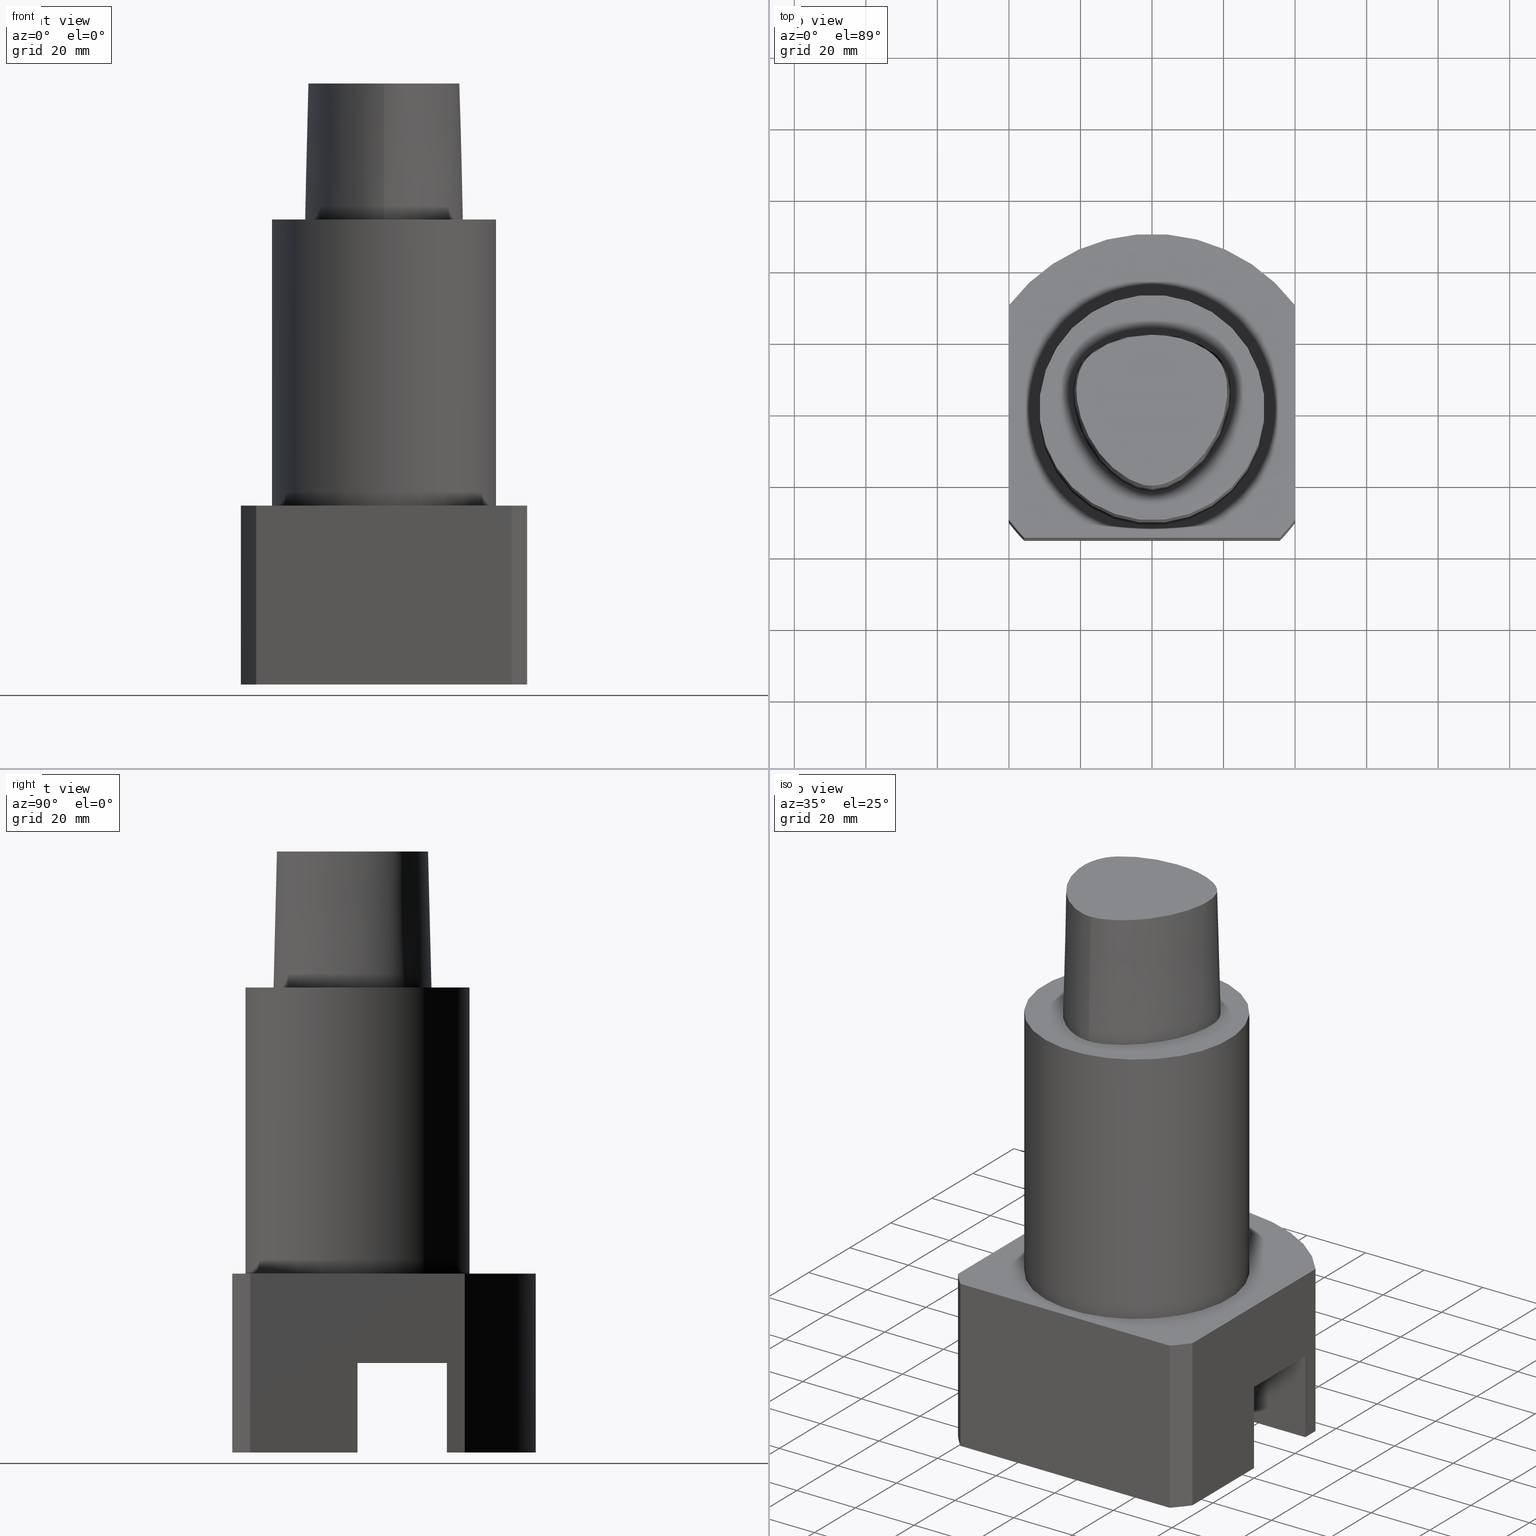
[diagram: canonical four-view strip — front | top / right | iso, engineering-drawing reading convention]
A machine part, canonical four-view strip (front | top / right | iso — engineering-drawing reading convention). The complete STEP part file that produces these views, byte-faithful:
ISO-10303-21;
HEADER;
FILE_DESCRIPTION((''),'1');
FILE_NAME('T:/21_DXF\X2\30C730FC30BF4F5C621057FA6E96\X0\/C6-90-BH25N-40130.stp','2017-05-03T04:36:31',(''),(''),'Spatial Interop R21 SP3','Kubotek KeyCreator 2011 V10.0.2 (22737)',' ');
FILE_SCHEMA(('automotive_design'));
ENDSEC;
DATA;
#1=MECHANICAL_DESIGN_GEOMETRIC_PRESENTATION_REPRESENTATION(' ',(#10,#11,#12,#13,#14,#15,#16,#17,#18,#19,#20,#21,#22,#23,#24,#25,#26,#27,#28,#29,#30,#31,#32,#33,#34,#35,#36,#37,#38,#39,#40,#41,#42,#43,#44,#45,#46,#47,#48,#49,#50,#51,#52,#53,#54,#55,#56,#57,#58,#59,#60,#61,#62,#63,#64,#65,#66,#67,#68),#6);
#2=PRODUCT_DEFINITION_CONTEXT('',#69,'design');
#3=APPLICATION_PROTOCOL_DEFINITION('INTERNATIONAL STANDARD','automotive_design',1994,#69);
#4=PRODUCT_CATEGORY_RELATIONSHIP('NONE','NONE',#70,#71);
#5=SHAPE_DEFINITION_REPRESENTATION(#72,#73);
#6= (GEOMETRIC_REPRESENTATION_CONTEXT(3)GLOBAL_UNCERTAINTY_ASSIGNED_CONTEXT((#76))GLOBAL_UNIT_ASSIGNED_CONTEXT((#78,#79,#80))REPRESENTATION_CONTEXT('NONE','WORKSPACE'));
#10=STYLED_ITEM('',(#82),#83);
#11=STYLED_ITEM('',(#84),#85);
#12=STYLED_ITEM('',(#86),#87);
#13=STYLED_ITEM('',(#88),#89);
#14=STYLED_ITEM('',(#90,#91),#92);
#15=STYLED_ITEM('',(#93,#94),#95);
#16=STYLED_ITEM('',(#96,#97),#98);
#17=STYLED_ITEM('',(#99),#100);
#18=STYLED_ITEM('',(#101,#102),#103);
#19=STYLED_ITEM('',(#104),#105);
#20=STYLED_ITEM('',(#106,#107),#108);
#21=STYLED_ITEM('',(#109,#110),#111);
#22=STYLED_ITEM('',(#112),#113);
#23=STYLED_ITEM('',(#114),#115);
#24=STYLED_ITEM('',(#116),#117);
#25=STYLED_ITEM('',(#118),#119);
#26=STYLED_ITEM('',(#120),#121);
#27=STYLED_ITEM('',(#122),#123);
#28=STYLED_ITEM('',(#124),#125);
#29=STYLED_ITEM('',(#126),#127);
#30=STYLED_ITEM('',(#128,#129),#130);
#31=STYLED_ITEM('',(#131,#132),#133);
#32=STYLED_ITEM('',(#134),#135);
#33=STYLED_ITEM('',(#136,#137),#138);
#34=STYLED_ITEM('',(#139,#140),#141);
#35=STYLED_ITEM('',(#142),#143);
#36=STYLED_ITEM('',(#144),#145);
#37=STYLED_ITEM('',(#146,#147),#148);
#38=STYLED_ITEM('',(#149),#150);
#39=STYLED_ITEM('',(#151),#152);
#40=STYLED_ITEM('',(#153),#154);
#41=STYLED_ITEM('',(#155),#156);
#42=STYLED_ITEM('',(#157,#158),#159);
#43=STYLED_ITEM('',(#160),#161);
#44=STYLED_ITEM('',(#162),#163);
#45=STYLED_ITEM('',(#164,#165),#166);
#46=STYLED_ITEM('',(#167),#168);
#47=STYLED_ITEM('',(#169),#170);
#48=STYLED_ITEM('',(#171),#172);
#49=STYLED_ITEM('',(#173),#174);
#50=STYLED_ITEM('',(#175,#176),#177);
#51=STYLED_ITEM('',(#178),#179);
#52=STYLED_ITEM('',(#180,#181),#182);
#53=STYLED_ITEM('',(#183),#184);
#54=STYLED_ITEM('',(#185),#186);
#55=STYLED_ITEM('',(#187,#188),#189);
#56=STYLED_ITEM('',(#190),#191);
#57=STYLED_ITEM('',(#192),#193);
#58=STYLED_ITEM('',(#194),#195);
#59=STYLED_ITEM('',(#196),#197);
#60=STYLED_ITEM('',(#198),#199);
#61=STYLED_ITEM('',(#200,#201),#202);
#62=STYLED_ITEM('',(#203),#204);
#63=STYLED_ITEM('',(#205),#206);
#64=STYLED_ITEM('',(#207,#208),#209);
#65=STYLED_ITEM('',(#210),#211);
#66=STYLED_ITEM('',(#212,#213),#214);
#67=STYLED_ITEM('',(#215),#216);
#68=STYLED_ITEM('',(#217),#218);
#69=APPLICATION_CONTEXT(' ');
#70=PRODUCT_CATEGORY('part','NONE');
#71=PRODUCT_RELATED_PRODUCT_CATEGORY('detail',' ',(#219));
#72=PRODUCT_DEFINITION_SHAPE('NONE','NONE',#220);
#73=ADVANCED_BREP_SHAPE_REPRESENTATION('240[2]',(#182,#221),#6);
#76=UNCERTAINTY_MEASURE_WITH_UNIT(LENGTH_MEASURE(1.0E-006),#78,'','');
#78= (CONVERSION_BASED_UNIT('MILLIMETRE',#224)LENGTH_UNIT()NAMED_UNIT(#227));
#79= (NAMED_UNIT(#229)PLANE_ANGLE_UNIT()SI_UNIT($,.RADIAN.));
#80= (NAMED_UNIT(#229)SOLID_ANGLE_UNIT()SI_UNIT($,.STERADIAN.));
#82=PRESENTATION_STYLE_ASSIGNMENT((#235));
#83=EDGE_CURVE('240[2]',#236,#237,#238,.T.);
#84=PRESENTATION_STYLE_ASSIGNMENT((#239));
#85=EDGE_CURVE('240[2]',#240,#241,#242,.T.);
#86=PRESENTATION_STYLE_ASSIGNMENT((#243));
#87=EDGE_CURVE('240[2]',#244,#245,#246,.T.);
#88=PRESENTATION_STYLE_ASSIGNMENT((#247));
#89=EDGE_CURVE('240[2]',#248,#249,#250,.T.);
#90=PRESENTATION_STYLE_ASSIGNMENT((#251));
#91=PRESENTATION_STYLE_ASSIGNMENT((#252));
#92=ADVANCED_FACE('240[2]',(#253),#254,.T.);
#93=PRESENTATION_STYLE_ASSIGNMENT((#255));
#94=PRESENTATION_STYLE_ASSIGNMENT((#256));
#95=ADVANCED_FACE('240[2]',(#257),#258,.T.);
#96=PRESENTATION_STYLE_ASSIGNMENT((#259));
#97=PRESENTATION_STYLE_ASSIGNMENT((#260));
#98=ADVANCED_FACE('240[2]',(#261),#262,.T.);
#99=PRESENTATION_STYLE_ASSIGNMENT((#263));
#100=EDGE_CURVE('240[2]',#264,#241,#265,.T.);
#101=PRESENTATION_STYLE_ASSIGNMENT((#266));
#102=PRESENTATION_STYLE_ASSIGNMENT((#267));
#103=ADVANCED_FACE('240[2]',(#268),#269,.T.);
#104=PRESENTATION_STYLE_ASSIGNMENT((#270));
#105=EDGE_CURVE('240[2]',#271,#236,#272,.T.);
#106=PRESENTATION_STYLE_ASSIGNMENT((#273));
#107=PRESENTATION_STYLE_ASSIGNMENT((#274));
#108=ADVANCED_FACE('240[2]',(#275),#276,.T.);
#109=PRESENTATION_STYLE_ASSIGNMENT((#277));
#110=PRESENTATION_STYLE_ASSIGNMENT((#278));
#111=ADVANCED_FACE('240[2]',(#279),#280,.T.);
#112=PRESENTATION_STYLE_ASSIGNMENT((#281));
#113=EDGE_CURVE('240[2]',#282,#283,#284,.T.);
#114=PRESENTATION_STYLE_ASSIGNMENT((#285));
#115=EDGE_CURVE('240[2]',#286,#287,#288,.T.);
#116=PRESENTATION_STYLE_ASSIGNMENT((#289));
#117=EDGE_CURVE('240[2]',#290,#283,#291,.T.);
#118=PRESENTATION_STYLE_ASSIGNMENT((#292));
#119=EDGE_CURVE('240[2]',#293,#244,#294,.T.);
#120=PRESENTATION_STYLE_ASSIGNMENT((#295));
#121=EDGE_CURVE('240[2]',#287,#271,#296,.T.);
#122=PRESENTATION_STYLE_ASSIGNMENT((#297));
#123=EDGE_CURVE('240[2]',#237,#298,#299,.T.);
#124=PRESENTATION_STYLE_ASSIGNMENT((#300));
#125=EDGE_CURVE('240[2]',#301,#282,#302,.T.);
#126=PRESENTATION_STYLE_ASSIGNMENT((#303));
#127=EDGE_CURVE('240[2]',#304,#293,#305,.T.);
#128=PRESENTATION_STYLE_ASSIGNMENT((#306));
#129=PRESENTATION_STYLE_ASSIGNMENT((#307));
#130=ADVANCED_FACE('240[2]',(#308,#309),#310,.T.);
#131=PRESENTATION_STYLE_ASSIGNMENT((#311));
#132=PRESENTATION_STYLE_ASSIGNMENT((#312));
#133=ADVANCED_FACE('240[2]',(#313),#314,.T.);
#134=PRESENTATION_STYLE_ASSIGNMENT((#315));
#135=EDGE_CURVE('240[2]',#298,#290,#316,.T.);
#136=PRESENTATION_STYLE_ASSIGNMENT((#317));
#137=PRESENTATION_STYLE_ASSIGNMENT((#318));
#138=ADVANCED_FACE('240[2]',(#319),#320,.F.);
#139=PRESENTATION_STYLE_ASSIGNMENT((#321));
#140=PRESENTATION_STYLE_ASSIGNMENT((#322));
#141=ADVANCED_FACE('240[2]',(#323),#324,.T.);
#142=PRESENTATION_STYLE_ASSIGNMENT((#325));
#143=EDGE_CURVE('240[2]',#326,#301,#327,.T.);
#144=PRESENTATION_STYLE_ASSIGNMENT((#328));
#145=EDGE_CURVE('240[2]',#329,#330,#331,.T.);
#146=PRESENTATION_STYLE_ASSIGNMENT((#332));
#147=PRESENTATION_STYLE_ASSIGNMENT((#333));
#148=ADVANCED_FACE('240[2]',(#334,#335),#336,.T.);
#149=PRESENTATION_STYLE_ASSIGNMENT((#337));
#150=EDGE_CURVE('240[2]',#293,#286,#338,.T.);
#151=PRESENTATION_STYLE_ASSIGNMENT((#339));
#152=EDGE_CURVE('240[2]',#298,#248,#340,.T.);
#153=PRESENTATION_STYLE_ASSIGNMENT((#341));
#154=EDGE_CURVE('240[2]',#249,#342,#343,.T.);
#155=PRESENTATION_STYLE_ASSIGNMENT((#344));
#156=EDGE_CURVE('240[2]',#240,#329,#345,.T.);
#157=PRESENTATION_STYLE_ASSIGNMENT((#346));
#158=PRESENTATION_STYLE_ASSIGNMENT((#347));
#159=ADVANCED_FACE('240[2]',(#348),#349,.T.);
#160=PRESENTATION_STYLE_ASSIGNMENT((#350));
#161=EDGE_CURVE('240[2]',#351,#351,#352,.T.);
#162=PRESENTATION_STYLE_ASSIGNMENT((#353));
#163=EDGE_CURVE('240[2]',#244,#354,#355,.T.);
#164=PRESENTATION_STYLE_ASSIGNMENT((#356));
#165=PRESENTATION_STYLE_ASSIGNMENT((#357));
#166=ADVANCED_FACE('240[2]',(#358),#359,.F.);
#167=PRESENTATION_STYLE_ASSIGNMENT((#360));
#168=EDGE_CURVE('240[2]',#354,#304,#361,.T.);
#169=PRESENTATION_STYLE_ASSIGNMENT((#362));
#170=EDGE_CURVE('240[2]',#241,#330,#363,.T.);
#171=PRESENTATION_STYLE_ASSIGNMENT((#364));
#172=EDGE_CURVE('240[2]',#290,#245,#365,.T.);
#173=PRESENTATION_STYLE_ASSIGNMENT((#366));
#174=EDGE_CURVE('240[2]',#237,#249,#367,.T.);
#175=PRESENTATION_STYLE_ASSIGNMENT((#368));
#176=PRESENTATION_STYLE_ASSIGNMENT((#369));
#177=ADVANCED_FACE('240[2]',(#370,#371),#372,.T.);
#178=PRESENTATION_STYLE_ASSIGNMENT((#373));
#179=EDGE_CURVE('240[2]',#342,#374,#375,.T.);
#180=PRESENTATION_STYLE_ASSIGNMENT((#376));
#181=PRESENTATION_STYLE_ASSIGNMENT((#377));
#182=MANIFOLD_SOLID_BREP('240[2]',#378);
#183=PRESENTATION_STYLE_ASSIGNMENT((#379));
#184=EDGE_CURVE('240[2]',#245,#286,#380,.T.);
#185=PRESENTATION_STYLE_ASSIGNMENT((#381));
#186=EDGE_CURVE('240[2]',#342,#236,#382,.T.);
#187=PRESENTATION_STYLE_ASSIGNMENT((#383));
#188=PRESENTATION_STYLE_ASSIGNMENT((#384));
#189=ADVANCED_FACE('240[2]',(#385),#386,.T.);
#190=PRESENTATION_STYLE_ASSIGNMENT((#387));
#191=EDGE_CURVE('240[2]',#374,#326,#388,.T.);
#192=PRESENTATION_STYLE_ASSIGNMENT((#389));
#193=EDGE_CURVE('240[2]',#283,#248,#390,.T.);
#194=PRESENTATION_STYLE_ASSIGNMENT((#391));
#195=EDGE_CURVE('240[2]',#392,#392,#393,.T.);
#196=PRESENTATION_STYLE_ASSIGNMENT((#394));
#197=EDGE_CURVE('240[2]',#329,#240,#395,.T.);
#198=PRESENTATION_STYLE_ASSIGNMENT((#396));
#199=EDGE_CURVE('240[2]',#374,#271,#397,.F.);
#200=PRESENTATION_STYLE_ASSIGNMENT((#398));
#201=PRESENTATION_STYLE_ASSIGNMENT((#399));
#202=ADVANCED_FACE('240[2]',(#400),#401,.T.);
#203=PRESENTATION_STYLE_ASSIGNMENT((#402));
#204=EDGE_CURVE('240[2]',#329,#264,#403,.T.);
#205=PRESENTATION_STYLE_ASSIGNMENT((#404));
#206=EDGE_CURVE('240[2]',#326,#287,#405,.T.);
#207=PRESENTATION_STYLE_ASSIGNMENT((#406));
#208=PRESENTATION_STYLE_ASSIGNMENT((#407));
#209=ADVANCED_FACE('240[2]',(#408),#409,.F.);
#210=PRESENTATION_STYLE_ASSIGNMENT((#410));
#211=EDGE_CURVE('240[2]',#301,#304,#411,.T.);
#212=PRESENTATION_STYLE_ASSIGNMENT((#412));
#213=PRESENTATION_STYLE_ASSIGNMENT((#413));
#214=ADVANCED_FACE('240[2]',(#414),#415,.T.);
#215=PRESENTATION_STYLE_ASSIGNMENT((#416));
#216=EDGE_CURVE('240[2]',#330,#264,#417,.T.);
#217=PRESENTATION_STYLE_ASSIGNMENT((#418));
#218=EDGE_CURVE('240[2]',#282,#354,#419,.T.);
#219=PRODUCT('240[2]','240[2]','PART-240[2]-DESC',(#420));
#220=PRODUCT_DEFINITION('NONE','NONE',#421,#2);
#221=AXIS2_PLACEMENT_3D('',#422,#423,#424);
#224=LENGTH_MEASURE_WITH_UNIT(LENGTH_MEASURE(1.0),#425);
#227=DIMENSIONAL_EXPONENTS(1.0,0.0,0.0,0.0,0.0,0.0,0.0);
#229=DIMENSIONAL_EXPONENTS(0.0,0.0,0.0,0.0,0.0,0.0,0.0);
#235=CURVE_STYLE('',#426,POSITIVE_LENGTH_MEASURE(1000.0),#427);
#236=VERTEX_POINT('',#428);
#237=VERTEX_POINT('',#429);
#238=LINE('',#430,#431);
#239=CURVE_STYLE('',#432,POSITIVE_LENGTH_MEASURE(1000.0),#433);
#240=VERTEX_POINT('',#434);
#241=VERTEX_POINT('',#435);
#242=LINE('',#436,#437);
#243=CURVE_STYLE('',#438,POSITIVE_LENGTH_MEASURE(1000.0),#439);
#244=VERTEX_POINT('',#440);
#245=VERTEX_POINT('',#441);
#246=CIRCLE('',#442,50.0);
#247=CURVE_STYLE('',#443,POSITIVE_LENGTH_MEASURE(1000.0),#444);
#248=VERTEX_POINT('',#445);
#249=VERTEX_POINT('',#446);
#250=LINE('',#447,#448);
#251=SURFACE_STYLE_USAGE(.BOTH.,#449);
#252=CURVE_STYLE('',#450,POSITIVE_LENGTH_MEASURE(1000.0),#451);
#253=FACE_OUTER_BOUND('',#452,.T.);
#254=PLANE('',#453);
#255=SURFACE_STYLE_USAGE(.BOTH.,#454);
#256=CURVE_STYLE('',#455,POSITIVE_LENGTH_MEASURE(1000.0),#456);
#257=FACE_OUTER_BOUND('',#457,.T.);
#258=B_SPLINE_SURFACE_WITH_KNOTS('',3,3,((#458,#459,#460,#461),(#462,#463,#464,#465),(#466,#467,#468,#469),(#470,#471,#472,#473),(#474,#475,#476,#477),(#478,#479,#480,#481),(#482,#483,#484,#485),(#486,#487,#488,#489),(#490,#491,#492,#493),(#494,#495,#496,#497),(#498,#499,#500,#501),(#502,#503,#504,#505),(#506,#507,#508,#509),(#510,#511,#512,#513),(#514,#515,#516,#517),(#518,#519,#520,#521),(#522,#523,#524,#525),(#526,#527,#528,#529)),.UNSPECIFIED.,.F.,.F.,.F.,(4,1,1,1,1,1,1,1,1,2,1,1,1,1,4),(4,4),(-6.6151339308743,-6.20168806019465,-5.78824218951501,-5.37479631883537,-4.96135044815572,-4.13445870679644,-3.30756696543715,-2.89412109475751,-2.48067522407786,-2.06722935339822,-1.65378348271857,-1.24033761203893,-0.826891741359287,-0.413445870679644,0.0),(-3.8,0.0),.UNSPECIFIED.);
#259=SURFACE_STYLE_USAGE(.BOTH.,#530);
#260=CURVE_STYLE('',#531,POSITIVE_LENGTH_MEASURE(1000.0),#532);
#261=FACE_OUTER_BOUND('',#533,.T.);
#262=PLANE('',#534);
#263=CURVE_STYLE('',#535,POSITIVE_LENGTH_MEASURE(1000.0),#536);
#264=VERTEX_POINT('',#537);
#265=B_SPLINE_CURVE_WITH_KNOTS('',3,(#538,#539,#540,#541,#542,#543,#544,#545,#546,#547,#548,#549,#550,#551,#552,#553,#554),.UNSPECIFIED.,.F.,.F.,(4,1,1,1,1,1,1,1,1,1,1,1,1,1,4),(-13.2302678617486,-12.816821991069,-12.4033761203893,-11.9899302497097,-11.57648437903,-11.1630385083504,-10.9563155730106,-10.7495926376707,-10.3361467669911,-9.92270089631145,-9.09580915495216,-8.26891741359287,-7.44202567223358,-7.02857980155394,-6.6151339308743),.UNSPECIFIED.);
#266=SURFACE_STYLE_USAGE(.BOTH.,#555);
#267=CURVE_STYLE('',#556,POSITIVE_LENGTH_MEASURE(1000.0),#557);
#268=FACE_OUTER_BOUND('',#558,.T.);
#269=CONICAL_SURFACE('',#559,1.0,0.0249931148314473);
#270=CURVE_STYLE('',#560,POSITIVE_LENGTH_MEASURE(1000.0),#561);
#271=VERTEX_POINT('',#562);
#272=LINE('',#563,#564);
#273=SURFACE_STYLE_USAGE(.BOTH.,#565);
#274=CURVE_STYLE('',#566,POSITIVE_LENGTH_MEASURE(1000.0),#567);
#275=FACE_OUTER_BOUND('',#568,.T.);
#276=PLANE('',#569);
#277=SURFACE_STYLE_USAGE(.BOTH.,#570);
#278=CURVE_STYLE('',#571,POSITIVE_LENGTH_MEASURE(1000.0),#572);
#279=FACE_OUTER_BOUND('',#573,.T.);
#280=CYLINDRICAL_SURFACE('',#574,50.0);
#281=CURVE_STYLE('',#575,POSITIVE_LENGTH_MEASURE(1000.0),#576);
#282=VERTEX_POINT('',#577);
#283=VERTEX_POINT('',#578);
#284=LINE('',#579,#580);
#285=CURVE_STYLE('',#581,POSITIVE_LENGTH_MEASURE(1000.0),#582);
#286=VERTEX_POINT('',#583);
#287=VERTEX_POINT('',#584);
#288=LINE('',#585,#586);
#289=CURVE_STYLE('',#587,POSITIVE_LENGTH_MEASURE(1000.0),#588);
#290=VERTEX_POINT('',#589);
#291=CIRCLE('',#590,50.0);
#292=CURVE_STYLE('',#591,POSITIVE_LENGTH_MEASURE(1000.0),#592);
#293=VERTEX_POINT('',#593);
#294=LINE('',#594,#595);
#295=CURVE_STYLE('',#596,POSITIVE_LENGTH_MEASURE(1000.0),#597);
#296=LINE('',#598,#599);
#297=CURVE_STYLE('',#600,POSITIVE_LENGTH_MEASURE(1000.0),#601);
#298=VERTEX_POINT('',#602);
#299=LINE('',#603,#604);
#300=CURVE_STYLE('',#605,POSITIVE_LENGTH_MEASURE(1000.0),#606);
#301=VERTEX_POINT('',#607);
#302=LINE('',#608,#609);
#303=CURVE_STYLE('',#610,POSITIVE_LENGTH_MEASURE(1000.0),#611);
#304=VERTEX_POINT('',#612);
#305=LINE('',#613,#614);
#306=SURFACE_STYLE_USAGE(.BOTH.,#615);
#307=CURVE_STYLE('',#616,POSITIVE_LENGTH_MEASURE(1000.0),#617);
#308=FACE_BOUND('',#618,.T.);
#309=FACE_BOUND('',#619,.T.);
#310=CYLINDRICAL_SURFACE('',#620,31.5);
#311=SURFACE_STYLE_USAGE(.BOTH.,#621);
#312=CURVE_STYLE('',#622,POSITIVE_LENGTH_MEASURE(1000.0),#623);
#313=FACE_OUTER_BOUND('',#624,.T.);
#314=B_SPLINE_SURFACE_WITH_KNOTS('',3,3,((#625,#626,#627,#628),(#629,#630,#631,#632),(#633,#634,#635,#636),(#637,#638,#639,#640),(#641,#642,#643,#644),(#645,#646,#647,#648),(#649,#650,#651,#652),(#653,#654,#655,#656),(#657,#658,#659,#660),(#661,#662,#663,#664),(#665,#666,#667,#668),(#669,#670,#671,#672),(#673,#674,#675,#676),(#677,#678,#679,#680),(#681,#682,#683,#684),(#685,#686,#687,#688),(#689,#690,#691,#692)),.UNSPECIFIED.,.F.,.F.,.F.,(4,1,1,1,1,1,1,1,1,1,1,1,1,1,4),(4,4),(-13.2302678617486,-12.816821991069,-12.4033761203893,-11.9899302497097,-11.57648437903,-11.1630385083504,-10.9563155730106,-10.7495926376707,-10.3361467669911,-9.92270089631145,-9.09580915495216,-8.26891741359287,-7.44202567223358,-7.02857980155394,-6.6151339308743),(-3.8,0.0),.UNSPECIFIED.);
#315=CURVE_STYLE('',#693,POSITIVE_LENGTH_MEASURE(1000.0),#694);
#316=LINE('',#695,#696);
#317=SURFACE_STYLE_USAGE(.BOTH.,#697);
#318=CURVE_STYLE('',#698,POSITIVE_LENGTH_MEASURE(1000.0),#699);
#319=FACE_OUTER_BOUND('',#700,.T.);
#320=PLANE('',#701);
#321=SURFACE_STYLE_USAGE(.BOTH.,#702);
#322=CURVE_STYLE('',#703,POSITIVE_LENGTH_MEASURE(1000.0),#704);
#323=FACE_OUTER_BOUND('',#705,.T.);
#324=PLANE('',#706);
#325=CURVE_STYLE('',#707,POSITIVE_LENGTH_MEASURE(1000.0),#708);
#326=VERTEX_POINT('',#709);
#327=LINE('',#710,#711);
#328=CURVE_STYLE('',#712,POSITIVE_LENGTH_MEASURE(1000.0),#713);
#329=VERTEX_POINT('',#714);
#330=VERTEX_POINT('',#715);
#331=LINE('',#716,#717);
#332=SURFACE_STYLE_USAGE(.BOTH.,#718);
#333=CURVE_STYLE('',#719,POSITIVE_LENGTH_MEASURE(1000.0),#720);
#334=FACE_OUTER_BOUND('',#721,.T.);
#335=FACE_BOUND('',#722,.T.);
#336=PLANE('',#723);
#337=CURVE_STYLE('',#724,POSITIVE_LENGTH_MEASURE(1000.0),#725);
#338=CIRCLE('',#726,50.0);
#339=CURVE_STYLE('',#727,POSITIVE_LENGTH_MEASURE(1000.0),#728);
#340=CIRCLE('',#729,50.0);
#341=CURVE_STYLE('',#730,POSITIVE_LENGTH_MEASURE(1000.0),#731);
#342=VERTEX_POINT('',#732);
#343=LINE('',#733,#734);
#344=CURVE_STYLE('',#735,POSITIVE_LENGTH_MEASURE(1000.0),#736);
#345=B_SPLINE_CURVE_WITH_KNOTS('',3,(#737,#738,#739,#740,#741,#742,#743,#744,#745,#746,#747,#748,#749,#750,#751,#752),.UNSPECIFIED.,.F.,.F.,(4,1,1,1,1,1,1,1,1,1,1,1,1,4),(6.61513393087489,6.99917207152274,7.48193246986995,7.96289324787093,8.45540287038584,9.10291653679981,9.67129810936083,10.1618749681153,10.6358867802489,11.1080734988593,11.6043706019633,12.09451993853,12.6985979284494,13.2302678617486),.UNSPECIFIED.);
#346=SURFACE_STYLE_USAGE(.BOTH.,#753);
#347=CURVE_STYLE('',#754,POSITIVE_LENGTH_MEASURE(1000.0),#755);
#348=FACE_OUTER_BOUND('',#756,.T.);
#349=PLANE('',#757);
#350=CURVE_STYLE('',#758,POSITIVE_LENGTH_MEASURE(1000.0),#759);
#351=VERTEX_POINT('',#760);
#352=CIRCLE('',#761,31.5);
#353=CURVE_STYLE('',#762,POSITIVE_LENGTH_MEASURE(1000.0),#763);
#354=VERTEX_POINT('',#764);
#355=LINE('',#765,#766);
#356=SURFACE_STYLE_USAGE(.BOTH.,#767);
#357=CURVE_STYLE('',#768,POSITIVE_LENGTH_MEASURE(1000.0),#769);
#358=FACE_OUTER_BOUND('',#770,.T.);
#359=PLANE('',#771);
#360=CURVE_STYLE('',#772,POSITIVE_LENGTH_MEASURE(1000.0),#773);
#361=LINE('',#774,#775);
#362=CURVE_STYLE('',#776,POSITIVE_LENGTH_MEASURE(1000.0),#777);
#363=B_SPLINE_CURVE_WITH_KNOTS('',3,(#778,#779,#780,#781,#782,#783,#784,#785,#786,#787,#788,#789,#790,#791,#792,#793,#794,#795),.UNSPECIFIED.,.F.,.F.,(4,1,1,1,1,1,1,1,1,2,1,1,1,1,4),(-6.6151339308743,-6.20168806019465,-5.78824218951501,-5.37479631883537,-4.96135044815572,-4.13445870679644,-3.30756696543715,-2.89412109475751,-2.48067522407786,-2.06722935339822,-1.65378348271857,-1.24033761203893,-0.826891741359287,-0.413445870679644,0.0),.UNSPECIFIED.);
#364=CURVE_STYLE('',#796,POSITIVE_LENGTH_MEASURE(1000.0),#797);
#365=LINE('',#798,#799);
#366=CURVE_STYLE('',#800,POSITIVE_LENGTH_MEASURE(1000.0),#801);
#367=LINE('',#802,#803);
#368=SURFACE_STYLE_USAGE(.BOTH.,#804);
#369=CURVE_STYLE('',#805,POSITIVE_LENGTH_MEASURE(1000.0),#806);
#370=FACE_OUTER_BOUND('',#807,.T.);
#371=FACE_BOUND('',#808,.T.);
#372=PLANE('',#809);
#373=CURVE_STYLE('',#810,POSITIVE_LENGTH_MEASURE(1000.0),#811);
#374=VERTEX_POINT('',#812);
#375=LINE('',#813,#814);
#376=SURFACE_STYLE_USAGE(.BOTH.,#815);
#377=CURVE_STYLE('',#816,POSITIVE_LENGTH_MEASURE(1000.0),#817);
#378=CLOSED_SHELL('',(#133,#95,#103,#159,#202,#130,#148,#108,#141,#98,#138,#111,#189,#166,#209,#214,#177,#92));
#379=CURVE_STYLE('',#818,POSITIVE_LENGTH_MEASURE(1000.0),#819);
#380=LINE('',#820,#821);
#381=CURVE_STYLE('',#822,POSITIVE_LENGTH_MEASURE(1000.0),#823);
#382=LINE('',#824,#825);
#383=SURFACE_STYLE_USAGE(.BOTH.,#826);
#384=CURVE_STYLE('',#827,POSITIVE_LENGTH_MEASURE(1000.0),#828);
#385=FACE_OUTER_BOUND('',#829,.T.);
#386=CYLINDRICAL_SURFACE('',#830,50.0);
#387=CURVE_STYLE('',#831,POSITIVE_LENGTH_MEASURE(1000.0),#832);
#388=LINE('',#833,#834);
#389=CURVE_STYLE('',#835,POSITIVE_LENGTH_MEASURE(1000.0),#836);
#390=LINE('',#837,#838);
#391=CURVE_STYLE('',#839,POSITIVE_LENGTH_MEASURE(1000.0),#840);
#392=VERTEX_POINT('',#841);
#393=CIRCLE('',#842,31.5);
#394=CURVE_STYLE('',#843,POSITIVE_LENGTH_MEASURE(1000.0),#844);
#395=B_SPLINE_CURVE_WITH_KNOTS('',3,(#845,#846,#847,#848,#849,#850,#851,#852,#853,#854,#855,#856,#857,#858,#859,#860),.UNSPECIFIED.,.F.,.F.,(4,1,1,1,1,1,1,1,1,1,1,1,1,4),(0.0,0.447924670568964,0.9388024242536,1.50591409090711,2.07314340012323,2.72424957442464,3.2253501842849,3.80982102049476,4.34867996267067,4.85900173381144,5.37972031856977,6.03459825488646,6.61113557741484,6.61513393087381),.UNSPECIFIED.);
#396=CURVE_STYLE('',#861,POSITIVE_LENGTH_MEASURE(1000.0),#862);
#397=LINE('',#863,#864);
#398=SURFACE_STYLE_USAGE(.BOTH.,#865);
#399=CURVE_STYLE('',#866,POSITIVE_LENGTH_MEASURE(1000.0),#867);
#400=FACE_OUTER_BOUND('',#868,.T.);
#401=CYLINDRICAL_SURFACE('',#869,50.0);
#402=CURVE_STYLE('',#870,POSITIVE_LENGTH_MEASURE(1000.0),#871);
#403=LINE('',#872,#873);
#404=CURVE_STYLE('',#874,POSITIVE_LENGTH_MEASURE(1000.0),#875);
#405=LINE('',#876,#877);
#406=SURFACE_STYLE_USAGE(.BOTH.,#878);
#407=CURVE_STYLE('',#879,POSITIVE_LENGTH_MEASURE(1000.0),#880);
#408=FACE_OUTER_BOUND('',#881,.T.);
#409=PLANE('',#882);
#410=CURVE_STYLE('',#883,POSITIVE_LENGTH_MEASURE(1000.0),#884);
#411=CIRCLE('',#885,50.0);
#412=SURFACE_STYLE_USAGE(.BOTH.,#886);
#413=CURVE_STYLE('',#887,POSITIVE_LENGTH_MEASURE(1000.0),#888);
#414=FACE_OUTER_BOUND('',#889,.T.);
#415=PLANE('',#890);
#416=CURVE_STYLE('',#891,POSITIVE_LENGTH_MEASURE(1000.0),#892);
#417=CIRCLE('',#893,0.949936168493548);
#418=CURVE_STYLE('',#894,POSITIVE_LENGTH_MEASURE(1000.0),#895);
#419=CIRCLE('',#896,50.0);
#420=PRODUCT_CONTEXT('',#69,'mechanical');
#421=PRODUCT_DEFINITION_FORMATION_WITH_SPECIFIED_SOURCE(' ','NONE',#219,.NOT_KNOWN.);
#422=CARTESIAN_POINT('',(0.0,0.0,0.0));
#423=DIRECTION('',(0.0,0.0,1.0));
#424=DIRECTION('',(1.0,0.0,0.0));
#425= (NAMED_UNIT(#227)LENGTH_UNIT()SI_UNIT(.MILLI.,.METRE.));
#426=DRAUGHTING_PRE_DEFINED_CURVE_FONT('continuous');
#427=COLOUR_RGB('',0.0,1.0,1.0);
#428=CARTESIAN_POINT('',(39.9999999991092,24.9999999984574,-105.0));
#429=CARTESIAN_POINT('',(39.9999999991092,24.9999999984574,-130.0));
#430=CARTESIAN_POINT('',(39.9999999991092,24.9999999984574,-105.0));
#431=VECTOR('',#898,25.0);
#432=DRAUGHTING_PRE_DEFINED_CURVE_FONT('continuous');
#433=COLOUR_RGB('',0.0,1.0,1.0);
#434=CARTESIAN_POINT('',(0.038736923393866,-22.5191997536361,38.0));
#435=CARTESIAN_POINT('',(0.04359356758149,-23.4691235068931,0.0));
#436=CARTESIAN_POINT('',(0.038736923393866,-22.5191997536361,38.0));
#437=VECTOR('',#899,38.0118715498723);
#438=DRAUGHTING_PRE_DEFINED_CURVE_FONT('continuous');
#439=COLOUR_RGB('',0.0,1.0,1.0);
#440=CARTESIAN_POINT('',(35.7071421418235,-35.0000000015426,-80.0));
#441=CARTESIAN_POINT('',(39.9999999991092,-30.0000000015426,-80.0));
#442=AXIS2_PLACEMENT_3D('',#900,#901,#902);
#443=DRAUGHTING_PRE_DEFINED_CURVE_FONT('continuous');
#444=COLOUR_RGB('',0.0,1.0,1.0);
#445=CARTESIAN_POINT('',(-40.0000000008908,29.9999999984574,-130.0));
#446=CARTESIAN_POINT('',(-40.0000000008908,24.9999999984573,-130.0));
#447=CARTESIAN_POINT('',(-40.0000000008908,29.9999999984574,-130.0));
#448=VECTOR('',#903,5.00000000000009);
#449=SURFACE_SIDE_STYLE('',(#904));
#450=DRAUGHTING_PRE_DEFINED_CURVE_FONT('continuous');
#451=COLOUR_RGB('',0.0,1.0,1.0);
#452=EDGE_LOOP('',(#905,#906,#907,#908));
#453=AXIS2_PLACEMENT_3D('',#909,#910,#911);
#454=SURFACE_SIDE_STYLE('',(#912));
#455=DRAUGHTING_PRE_DEFINED_CURVE_FONT('continuous');
#456=COLOUR_RGB('',0.0,1.0,1.0);
#457=EDGE_LOOP('',(#913,#914,#915,#916));
#458=CARTESIAN_POINT('',(0.038736923393866,-22.5191997536361,38.0));
#459=CARTESIAN_POINT('',(0.04035580478973,-22.8358410047159,25.3333333333066));
#460=CARTESIAN_POINT('',(0.041974686185626,-23.1524822558133,12.6666666666934));
#461=CARTESIAN_POINT('',(0.04359356758149,-23.4691235068931,0.0));
#462=CARTESIAN_POINT('',(-1.33786123484754,-22.5261650259856,38.0));
#463=CARTESIAN_POINT('',(-1.38240731367927,-22.8430399310626,25.3333333333066));
#464=CARTESIAN_POINT('',(-1.42695339249092,-23.1599147815484,12.6666666666934));
#465=CARTESIAN_POINT('',(-1.4714994713963,-23.4767895315797,0.0));
#466=CARTESIAN_POINT('',(-4.08909358431842,-21.9268839879558,38.0));
#467=CARTESIAN_POINT('',(-4.20580731135515,-22.2249725500078,25.3333333333066));
#468=CARTESIAN_POINT('',(-4.32252104640446,-22.5230611651922,12.6666666666934));
#469=CARTESIAN_POINT('',(-4.43923476371401,-22.821149804767,0.0));
#470=CARTESIAN_POINT('',(-7.8333083619947,-19.9973514861616,38.0));
#471=CARTESIAN_POINT('',(-8.00568301809614,-20.2649260859405,25.3333333333066));
#472=CARTESIAN_POINT('',(-8.1780576640789,-20.532500564315,12.6666666666934));
#473=CARTESIAN_POINT('',(-8.35043230079961,-20.8000751253325,0.0));
#474=CARTESIAN_POINT('',(-11.1035071147626,-17.450554957873,38.0));
#475=CARTESIAN_POINT('',(-11.3173048160562,-17.6855739222454,25.3333333333066));
#476=CARTESIAN_POINT('',(-11.5311025116181,-17.9205928617968,12.6666666666934));
#477=CARTESIAN_POINT('',(-11.744900222602,-18.1556117874078,0.0));
#478=CARTESIAN_POINT('',(-14.9379535189057,-13.461132049697,38.0));
#479=CARTESIAN_POINT('',(-15.191622410671,-13.6542981711372,25.3333333333066));
#480=CARTESIAN_POINT('',(-15.4452913389853,-13.8474645327131,12.6666666666934));
#481=CARTESIAN_POINT('',(-15.6989602501314,-14.0406306929147,0.0));
#482=CARTESIAN_POINT('',(-18.6681263017223,-7.59391757463204,38.0));
#483=CARTESIAN_POINT('',(-18.9571800800711,-7.73136168081928,25.3333333333066));
#484=CARTESIAN_POINT('',(-19.2462337287194,-7.86880572399774,12.6666666666934));
#485=CARTESIAN_POINT('',(-19.5352875070682,-8.00624990770787,0.0));
#486=CARTESIAN_POINT('',(-20.7857899858339,-0.952862819790525,38.0));
#487=CARTESIAN_POINT('',(-21.0973808305434,-1.02218087467418,25.3333333333066));
#488=CARTESIAN_POINT('',(-21.408971677436,-1.09149899580772,12.6666666666934));
#489=CARTESIAN_POINT('',(-21.7205626190491,-1.16081708945282,0.0));
#490=CARTESIAN_POINT('',(-21.2911760556836,4.5469215763113,38.0));
#491=CARTESIAN_POINT('',(-21.610337904926,4.54783292082248,25.3333333333066));
#492=CARTESIAN_POINT('',(-21.9294998290918,4.54874426225691,12.6666666666934));
#493=CARTESIAN_POINT('',(-22.2486616783342,4.54965558738736,0.0));
#494=CARTESIAN_POINT('',(-20.7345309521958,8.74909381391006,38.0));
#495=CARTESIAN_POINT('',(-21.0445680426217,8.83349432450556,25.3333333333066));
#496=CARTESIAN_POINT('',(-21.3546050933631,8.91789488065068,12.6666666666934));
#497=CARTESIAN_POINT('',(-21.6646421256468,9.00229539124618,0.0));
#498=CARTESIAN_POINT('',(-19.5531512296439,11.3174844040833,38.0));
#499=CARTESIAN_POINT('',(-19.8336219699984,11.4710077674213,25.3333333333066));
#500=CARTESIAN_POINT('',(-20.1140927680763,11.6245311337623,12.6666666666934));
#501=CARTESIAN_POINT('',(-20.3945635471922,11.7780544971003,0.0));
#502=CARTESIAN_POINT('',(-17.9100913688793,13.524027510437,38.0));
#503=CARTESIAN_POINT('',(-18.1375785458768,13.7487051053655,25.3333333333066));
#504=CARTESIAN_POINT('',(-18.365065665211,13.9733826973296,12.6666666666934));
#505=CARTESIAN_POINT('',(-18.5925528034471,14.1980602922581,0.0));
#506=CARTESIAN_POINT('',(-15.7996349656398,15.3762170634413,38.0));
#507=CARTESIAN_POINT('',(-15.9739761051783,15.6434029846179,25.3333333333066));
#508=CARTESIAN_POINT('',(-16.1483172726872,15.9105889315134,12.6666666666934));
#509=CARTESIAN_POINT('',(-16.3226584122258,16.1777748720707,0.0));
#510=CARTESIAN_POINT('',(-12.1175640002064,17.3825162484012,38.0));
#511=CARTESIAN_POINT('',(-12.2475895903055,17.6724842099619,25.3333333333066));
#512=CARTESIAN_POINT('',(-12.3776152070492,17.9624521925696,12.6666666666934));
#513=CARTESIAN_POINT('',(-12.5076407874579,18.2524201541303,0.0));
#514=CARTESIAN_POINT('',(-8.21761151654222,18.7588585989994,38.0));
#515=CARTESIAN_POINT('',(-8.30099497910627,19.0656105427881,25.3333333333066));
#516=CARTESIAN_POINT('',(-8.38437843913309,19.3723624535439,12.6666666666934));
#517=CARTESIAN_POINT('',(-8.46776192107786,19.679114377952,0.0));
#518=CARTESIAN_POINT('',(-4.13466093881225,19.5396850837055,38.0));
#519=CARTESIAN_POINT('',(-4.16658562115465,19.8557172636973,25.3333333333066));
#520=CARTESIAN_POINT('',(-4.19851029939059,20.1717494367229,12.6666666666934));
#521=CARTESIAN_POINT('',(-4.23043497193604,20.487781597334,0.0));
#522=CARTESIAN_POINT('',(-1.37917220403684,19.6638560588908,38.0));
#523=CARTESIAN_POINT('',(-1.39382511685176,19.98016223565,25.3333333333066));
#524=CARTESIAN_POINT('',(-1.40847802945569,20.296468399885,12.6666666666934));
#525=CARTESIAN_POINT('',(-1.42313094248379,20.6127745766442,0.0));
#526=CARTESIAN_POINT('',(-0.001218547003662,19.7276821925089,38.0));
#527=CARTESIAN_POINT('',(-0.015869696232855,20.043988446791,25.3333333333066));
#528=CARTESIAN_POINT('',(-0.030520845462092,20.3602947010464,12.6666666666934));
#529=CARTESIAN_POINT('',(-0.045171994691285,20.6766009553285,0.0));
#530=SURFACE_SIDE_STYLE('',(#917));
#531=DRAUGHTING_PRE_DEFINED_CURVE_FONT('continuous');
#532=COLOUR_RGB('',0.0,1.0,1.0);
#533=EDGE_LOOP('',(#918,#919,#920,#921,#922,#923,#924,#925));
#534=AXIS2_PLACEMENT_3D('',#926,#927,#928);
#535=DRAUGHTING_PRE_DEFINED_CURVE_FONT('continuous');
#536=COLOUR_RGB('',0.0,1.0,1.0);
#537=CARTESIAN_POINT('',(0.044682985379347,20.6765087343109,0.0));
#538=CARTESIAN_POINT('',(0.044682985379347,20.6765087343109,0.0));
#539=CARTESIAN_POINT('',(1.42379272427753,20.6097915814392,0.0));
#540=CARTESIAN_POINT('',(4.2230955003445,20.4837538303966,0.0));
#541=CARTESIAN_POINT('',(8.47220762821777,19.6890432607088,0.0));
#542=CARTESIAN_POINT('',(12.5141247708253,18.2434968480404,0.0));
#543=CARTESIAN_POINT('',(16.3038624872874,16.1734192182143,0.0));
#544=CARTESIAN_POINT('',(19.1446913988473,13.7036723639434,0.0));
#545=CARTESIAN_POINT('',(20.7319894342149,11.1014620996188,0.0));
#546=CARTESIAN_POINT('',(21.7831756505763,8.28099229708081,0.0));
#547=CARTESIAN_POINT('',(22.2258240701438,4.60865440596506,0.0));
#548=CARTESIAN_POINT('',(21.7436130080666,-1.11326526354485,0.0));
#549=CARTESIAN_POINT('',(19.5519487660502,-7.95432366164584,0.0));
#550=CARTESIAN_POINT('',(14.9574167123838,-15.2089785567293,0.0));
#551=CARTESIAN_POINT('',(9.66840283021945,-20.0827414369705,0.0));
#552=CARTESIAN_POINT('',(4.51628650521788,-22.7946374572188,0.0));
#553=CARTESIAN_POINT('',(1.55867251738073,-23.4612972770043,0.0));
#554=CARTESIAN_POINT('',(0.04359356758149,-23.4691235068931,0.0));
#555=SURFACE_SIDE_STYLE('',(#929));
#556=DRAUGHTING_PRE_DEFINED_CURVE_FONT('continuous');
#557=COLOUR_RGB('',0.0,1.0,1.0);
#558=EDGE_LOOP('',(#930,#931,#932));
#559=AXIS2_PLACEMENT_3D('',#933,#934,#935);
#560=DRAUGHTING_PRE_DEFINED_CURVE_FONT('continuous');
#561=COLOUR_RGB('',0.0,1.0,1.0);
#562=CARTESIAN_POINT('',(39.9999999991092,-1.54260598739242E-009,-105.0));
#563=CARTESIAN_POINT('',(39.9999999991092,-0.200000001542579,-105.0));
#564=VECTOR('',#936,25.2);
#565=SURFACE_SIDE_STYLE('',(#937));
#566=DRAUGHTING_PRE_DEFINED_CURVE_FONT('continuous');
#567=COLOUR_RGB('',0.0,1.0,1.0);
#568=EDGE_LOOP('',(#938,#939,#940,#941));
#569=AXIS2_PLACEMENT_3D('',#942,#943,#944);
#570=SURFACE_SIDE_STYLE('',(#945));
#571=DRAUGHTING_PRE_DEFINED_CURVE_FONT('continuous');
#572=COLOUR_RGB('',0.0,1.0,1.0);
#573=EDGE_LOOP('',(#946,#947,#948,#949));
#574=AXIS2_PLACEMENT_3D('',#950,#951,#952);
#575=DRAUGHTING_PRE_DEFINED_CURVE_FONT('continuous');
#576=COLOUR_RGB('',0.0,1.0,1.0);
#577=CARTESIAN_POINT('',(-40.0000000008907,-30.0000000015427,-80.0));
#578=CARTESIAN_POINT('',(-40.0000000008908,29.9999999984575,-80.0));
#579=CARTESIAN_POINT('',(-40.0000000008907,-30.0000000015427,-80.0));
#580=VECTOR('',#953,60.0000000000002);
#581=DRAUGHTING_PRE_DEFINED_CURVE_FONT('continuous');
#582=COLOUR_RGB('',0.0,1.0,1.0);
#583=CARTESIAN_POINT('',(39.9999999991092,-30.0000000015426,-130.0));
#584=CARTESIAN_POINT('',(39.9999999991092,-1.54260779150484E-009,-130.0));
#585=CARTESIAN_POINT('',(39.9999999991092,-30.0000000015426,-130.0));
#586=VECTOR('',#954,29.8);
#587=DRAUGHTING_PRE_DEFINED_CURVE_FONT('continuous');
#588=COLOUR_RGB('',0.0,1.0,1.0);
#589=CARTESIAN_POINT('',(39.9999999991092,29.9999999984574,-80.0));
#590=AXIS2_PLACEMENT_3D('',#955,#956,#957);
#591=DRAUGHTING_PRE_DEFINED_CURVE_FONT('continuous');
#592=COLOUR_RGB('',0.0,1.0,1.0);
#593=CARTESIAN_POINT('',(35.7071421418235,-35.0000000015426,-130.0));
#594=CARTESIAN_POINT('',(35.7071421418235,-35.0000000015426,-130.0));
#595=VECTOR('',#958,50.0);
#596=DRAUGHTING_PRE_DEFINED_CURVE_FONT('continuous');
#597=COLOUR_RGB('',0.0,1.0,1.0);
#598=CARTESIAN_POINT('',(39.9999999991092,-1.54260249018989E-009,-117.5));
#599=VECTOR('',#959,1.0);
#600=DRAUGHTING_PRE_DEFINED_CURVE_FONT('continuous');
#601=COLOUR_RGB('',0.0,1.0,1.0);
#602=CARTESIAN_POINT('',(39.9999999991092,29.9999999984574,-130.0));
#603=CARTESIAN_POINT('',(39.9999999991092,24.9999999984574,-130.0));
#604=VECTOR('',#960,5.0);
#605=DRAUGHTING_PRE_DEFINED_CURVE_FONT('continuous');
#606=COLOUR_RGB('',0.0,1.0,1.0);
#607=CARTESIAN_POINT('',(-40.0000000008908,-30.0000000015427,-130.0));
#608=CARTESIAN_POINT('',(-40.0000000008908,-30.0000000015427,-130.0));
#609=VECTOR('',#961,50.0);
#610=DRAUGHTING_PRE_DEFINED_CURVE_FONT('continuous');
#611=COLOUR_RGB('',0.0,1.0,1.0);
#612=CARTESIAN_POINT('',(-35.707142143605,-35.0000000015427,-130.0));
#613=CARTESIAN_POINT('',(-35.707142143605,-35.0000000015427,-130.0));
#614=VECTOR('',#962,71.4142842854285);
#615=SURFACE_SIDE_STYLE('',(#963));
#616=DRAUGHTING_PRE_DEFINED_CURVE_FONT('continuous');
#617=COLOUR_RGB('',0.0,1.0,1.0);
#618=EDGE_LOOP('',(#964));
#619=EDGE_LOOP('',(#965));
#620=AXIS2_PLACEMENT_3D('',#966,#967,#968);
#621=SURFACE_SIDE_STYLE('',(#969));
#622=DRAUGHTING_PRE_DEFINED_CURVE_FONT('continuous');
#623=COLOUR_RGB('',0.0,1.0,1.0);
#624=EDGE_LOOP('',(#970,#971,#972,#973));
#625=CARTESIAN_POINT('',(-0.001218367817519,19.7276822012873,38.0));
#626=CARTESIAN_POINT('',(0.014082083248157,20.0439577123075,25.3333333333066));
#627=CARTESIAN_POINT('',(0.029382534313671,20.3602332232908,12.6666666666934));
#628=CARTESIAN_POINT('',(0.044682985379347,20.6765087343109,0.0));
#629=CARTESIAN_POINT('',(1.37788651195108,19.6609652834875,38.0));
#630=CARTESIAN_POINT('',(1.3931885827258,19.9772407169847,25.3333333333066));
#631=CARTESIAN_POINT('',(1.40849065356095,20.2935162254648,12.6666666666934));
#632=CARTESIAN_POINT('',(1.42379272427753,20.6097915814392,0.0));
#633=CARTESIAN_POINT('',(4.135446440878,19.5347778787784,38.0));
#634=CARTESIAN_POINT('',(4.16466278851883,19.8511031866125,25.3333333333066));
#635=CARTESIAN_POINT('',(4.1938791526746,20.1674284644204,12.6666666666934));
#636=CARTESIAN_POINT('',(4.2230955003445,20.4837538303966,0.0));
#637=CARTESIAN_POINT('',(8.213607363795,18.7706026638736,38.0));
#638=CARTESIAN_POINT('',(8.29980745008421,19.0767495109635,25.3333333333066));
#639=CARTESIAN_POINT('',(8.38600751285747,19.3828964329996,12.6666666666934));
#640=CARTESIAN_POINT('',(8.47220762821777,19.6890432607088,0.0));
#641=CARTESIAN_POINT('',(12.1316338645671,17.3698624840857,38.0));
#642=CARTESIAN_POINT('',(12.2591308270381,17.6610739397708,25.3333333333066));
#643=CARTESIAN_POINT('',(12.3866278083543,17.9522853923553,12.6666666666934));
#644=CARTESIAN_POINT('',(12.5141247708253,18.2434968480404,0.0));
#645=CARTESIAN_POINT('',(15.7706546153679,15.3789501349612,38.0));
#646=CARTESIAN_POINT('',(15.9483905900895,15.6437731794811,25.3333333333066));
#647=CARTESIAN_POINT('',(16.1261265513272,15.9085961736944,12.6666666666934));
#648=CARTESIAN_POINT('',(16.3038624872874,16.1734192182143,0.0));
#649=CARTESIAN_POINT('',(18.4265894256284,13.0570022172893,38.0));
#650=CARTESIAN_POINT('',(18.6659567517146,13.2725589420689,25.3333333333066));
#651=CARTESIAN_POINT('',(18.9053240921419,13.4881156488541,12.6666666666934));
#652=CARTESIAN_POINT('',(19.1446913988473,13.7036723639434,0.0));
#653=CARTESIAN_POINT('',(19.8679958653038,10.6923771981998,38.0));
#654=CARTESIAN_POINT('',(20.1559937048299,10.8287388264873,25.3333333333066));
#655=CARTESIAN_POINT('',(20.4439915656177,10.965100461641,12.6666666666934));
#656=CARTESIAN_POINT('',(20.7319894342149,11.1014620996188,0.0));
#657=CARTESIAN_POINT('',(20.8470867582337,8.07149548576131,38.0));
#658=CARTESIAN_POINT('',(21.1591164072431,8.14132775555392,25.3333333333066));
#659=CARTESIAN_POINT('',(21.4711459821861,8.21116003697855,12.6666666666934));
#660=CARTESIAN_POINT('',(21.7831756505763,8.28099229708081,0.0));
#661=CARTESIAN_POINT('',(21.2693244256982,4.61157245650171,38.0));
#662=CARTESIAN_POINT('',(21.5881576801997,4.6105997689982,25.3333333333066));
#663=CARTESIAN_POINT('',(21.9069908544037,4.60962709346857,12.6666666666934));
#664=CARTESIAN_POINT('',(22.2258240701438,4.60865440596506,0.0));
#665=CARTESIAN_POINT('',(20.8071610855575,-0.912828649855193,38.0));
#666=CARTESIAN_POINT('',(21.119311671178,-0.979640884839481,25.3333333333066));
#667=CARTESIAN_POINT('',(21.4314624224461,-1.04645306732201,12.6666666666934));
#668=CARTESIAN_POINT('',(21.7436130080666,-1.11326526354485,0.0));
#669=CARTESIAN_POINT('',(18.6841935581315,-7.54428794252837,38.0));
#670=CARTESIAN_POINT('',(18.9734452551861,-7.6809665891091,25.3333333333066));
#671=CARTESIAN_POINT('',(19.2626970689956,-7.81764505382656,12.6666666666934));
#672=CARTESIAN_POINT('',(19.5519487660502,-7.95432366164584,0.0));
#673=CARTESIAN_POINT('',(14.2175552814,-14.5971504342323,38.0));
#674=CARTESIAN_POINT('',(14.4641757465198,-14.8010930946929,25.3333333333066));
#675=CARTESIAN_POINT('',(14.710796247264,-15.0050359737917,12.6666666666934));
#676=CARTESIAN_POINT('',(14.9574167123838,-15.2089785567293,0.0));
#677=CARTESIAN_POINT('',(9.0844808732933,-19.3179298129689,38.0));
#678=CARTESIAN_POINT('',(9.27912152349017,-19.572866915557,25.3333333333066));
#679=CARTESIAN_POINT('',(9.47376218971294,-19.827804295621,12.6666666666934));
#680=CARTESIAN_POINT('',(9.66840283021945,-20.0827414369705,0.0));
#681=CARTESIAN_POINT('',(4.17112919194182,-21.8987568152736,38.0));
#682=CARTESIAN_POINT('',(4.28618163483998,-22.1973837173649,25.3333333333066));
#683=CARTESIAN_POINT('',(4.40123406239433,-22.4960105163661,12.6666666666934));
#684=CARTESIAN_POINT('',(4.51628650521788,-22.7946374572188,0.0));
#685=CARTESIAN_POINT('',(1.41533654381097,-22.5120888467812,38.0));
#686=CARTESIAN_POINT('',(1.46311520162011,-22.8284916374445,25.3333333333066));
#687=CARTESIAN_POINT('',(1.51089385942236,-23.144894486341,12.6666666666934));
#688=CARTESIAN_POINT('',(1.55867251738073,-23.4612972770043,0.0));
#689=CARTESIAN_POINT('',(0.038736923393866,-22.5191997536361,38.0));
#690=CARTESIAN_POINT('',(0.04035580478973,-22.8358410047159,25.3333333333066));
#691=CARTESIAN_POINT('',(0.041974686185626,-23.1524822558133,12.6666666666934));
#692=CARTESIAN_POINT('',(0.04359356758149,-23.4691235068931,0.0));
#693=DRAUGHTING_PRE_DEFINED_CURVE_FONT('continuous');
#694=COLOUR_RGB('',0.0,1.0,1.0);
#695=CARTESIAN_POINT('',(39.9999999991092,29.9999999984574,-130.0));
#696=VECTOR('',#974,50.0);
#697=SURFACE_SIDE_STYLE('',(#975));
#698=DRAUGHTING_PRE_DEFINED_CURVE_FONT('continuous');
#699=COLOUR_RGB('',0.0,1.0,1.0);
#700=EDGE_LOOP('',(#976,#977,#978,#979));
#701=AXIS2_PLACEMENT_3D('',#980,#981,#982);
#702=SURFACE_SIDE_STYLE('',(#983));
#703=DRAUGHTING_PRE_DEFINED_CURVE_FONT('continuous');
#704=COLOUR_RGB('',0.0,1.0,1.0);
#705=EDGE_LOOP('',(#984,#985,#986,#987,#988,#989,#990,#991));
#706=AXIS2_PLACEMENT_3D('',#992,#993,#994);
#707=DRAUGHTING_PRE_DEFINED_CURVE_FONT('continuous');
#708=COLOUR_RGB('',0.0,1.0,1.0);
#709=CARTESIAN_POINT('',(-40.0000000008908,-1.54260598739242E-009,-130.0));
#710=CARTESIAN_POINT('',(-40.0000000008908,-0.200000001542643,-130.0));
#711=VECTOR('',#995,29.8);
#712=DRAUGHTING_PRE_DEFINED_CURVE_FONT('continuous');
#713=COLOUR_RGB('',0.0,1.0,1.0);
#714=CARTESIAN_POINT('',(-0.001218547003662,19.7276821925089,38.0));
#715=CARTESIAN_POINT('',(-0.045171994691285,20.6766009553285,0.0));
#716=CARTESIAN_POINT('',(-0.001218547003662,19.7276821925089,38.0));
#717=VECTOR('',#996,38.0118715498723);
#718=SURFACE_SIDE_STYLE('',(#997));
#719=DRAUGHTING_PRE_DEFINED_CURVE_FONT('continuous');
#720=COLOUR_RGB('',0.0,1.0,1.0);
#721=EDGE_LOOP('',(#998));
#722=EDGE_LOOP('',(#999,#1000,#1001));
#723=AXIS2_PLACEMENT_3D('',#1002,#1003,#1004);
#724=DRAUGHTING_PRE_DEFINED_CURVE_FONT('continuous');
#725=COLOUR_RGB('',0.0,1.0,1.0);
#726=AXIS2_PLACEMENT_3D('',#1005,#1006,#1007);
#727=DRAUGHTING_PRE_DEFINED_CURVE_FONT('continuous');
#728=COLOUR_RGB('',0.0,1.0,1.0);
#729=AXIS2_PLACEMENT_3D('',#1008,#1009,#1010);
#730=DRAUGHTING_PRE_DEFINED_CURVE_FONT('continuous');
#731=COLOUR_RGB('',0.0,1.0,1.0);
#732=CARTESIAN_POINT('',(-40.0000000008908,24.9999999984574,-105.0));
#733=CARTESIAN_POINT('',(-40.0000000008908,24.9999999984573,-130.0));
#734=VECTOR('',#1011,25.0);
#735=DRAUGHTING_PRE_DEFINED_CURVE_FONT('continuous');
#736=COLOUR_RGB('',0.0,1.0,1.0);
#737=CARTESIAN_POINT('',(0.038736923394311,-22.519199753636,38.0));
#738=CARTESIAN_POINT('',(1.31742058183662,-22.512662269405,38.0));
#739=CARTESIAN_POINT('',(4.2093773447498,-21.9116226439989,38.0));
#740=CARTESIAN_POINT('',(8.20895504542113,-19.7798683845067,38.0));
#741=CARTESIAN_POINT('',(11.9784633234593,-16.681663904162,38.0));
#742=CARTESIAN_POINT('',(15.5308821579362,-12.5807487594113,38.0));
#743=CARTESIAN_POINT('',(18.4566248438667,-7.64932246015528,38.0));
#744=CARTESIAN_POINT('',(20.4036090752029,-2.27012499825289,38.0));
#745=CARTESIAN_POINT('',(21.2357187429189,2.79891401173156,38.0));
#746=CARTESIAN_POINT('',(21.0811206267748,7.62543090736657,38.0));
#747=CARTESIAN_POINT('',(19.3383577336563,12.2772250726194,38.0));
#748=CARTESIAN_POINT('',(15.5796322014404,15.5799672120682,38.0));
#749=CARTESIAN_POINT('',(10.8392956074438,17.9834601687347,38.0));
#750=CARTESIAN_POINT('',(5.56068045850571,19.4586143858472,38.0));
#751=CARTESIAN_POINT('',(1.77223893711014,19.6418877095654,38.0));
#752=CARTESIAN_POINT('',(-0.001218367817519,19.7276822012873,38.0));
#753=SURFACE_SIDE_STYLE('',(#1012));
#754=DRAUGHTING_PRE_DEFINED_CURVE_FONT('continuous');
#755=COLOUR_RGB('',0.0,1.0,1.0);
#756=EDGE_LOOP('',(#1013,#1014));
#757=AXIS2_PLACEMENT_3D('',#1015,#1016,#1017);
#758=DRAUGHTING_PRE_DEFINED_CURVE_FONT('continuous');
#759=COLOUR_RGB('',0.0,1.0,1.0);
#760=CARTESIAN_POINT('',(-22.2738636082671,22.2738636058336,-80.0));
#761=AXIS2_PLACEMENT_3D('',#1018,#1019,#1020);
#762=DRAUGHTING_PRE_DEFINED_CURVE_FONT('continuous');
#763=COLOUR_RGB('',0.0,1.0,1.0);
#764=CARTESIAN_POINT('',(-35.707142143605,-35.0000000015427,-80.0));
#765=CARTESIAN_POINT('',(35.7071421418235,-35.0000000015426,-80.0));
#766=VECTOR('',#1021,71.4142842854285);
#767=SURFACE_SIDE_STYLE('',(#1022));
#768=DRAUGHTING_PRE_DEFINED_CURVE_FONT('continuous');
#769=COLOUR_RGB('',0.0,1.0,1.0);
#770=EDGE_LOOP('',(#1023,#1024,#1025,#1026));
#771=AXIS2_PLACEMENT_3D('',#1027,#1028,#1029);
#772=DRAUGHTING_PRE_DEFINED_CURVE_FONT('continuous');
#773=COLOUR_RGB('',0.0,1.0,1.0);
#774=CARTESIAN_POINT('',(-35.707142143605,-35.0000000015427,-80.0));
#775=VECTOR('',#1030,50.0);
#776=DRAUGHTING_PRE_DEFINED_CURVE_FONT('continuous');
#777=COLOUR_RGB('',0.0,1.0,1.0);
#778=CARTESIAN_POINT('',(0.04359356758149,-23.4691235068931,0.0));
#779=CARTESIAN_POINT('',(-1.4714994713963,-23.4767895315797,0.0));
#780=CARTESIAN_POINT('',(-4.43923476371401,-22.821149804767,0.0));
#781=CARTESIAN_POINT('',(-8.35043230079961,-20.8000751253325,0.0));
#782=CARTESIAN_POINT('',(-11.744900222602,-18.1556117874078,0.0));
#783=CARTESIAN_POINT('',(-15.6989602501314,-14.0406306929147,0.0));
#784=CARTESIAN_POINT('',(-19.5352875070682,-8.00624990770787,0.0));
#785=CARTESIAN_POINT('',(-21.7205626190491,-1.16081708945282,0.0));
#786=CARTESIAN_POINT('',(-22.2486616783342,4.54965558738736,0.0));
#787=CARTESIAN_POINT('',(-21.6646421256468,9.00229539124618,0.0));
#788=CARTESIAN_POINT('',(-20.3945635471922,11.7780544971003,0.0));
#789=CARTESIAN_POINT('',(-18.5925528034471,14.1980602922581,0.0));
#790=CARTESIAN_POINT('',(-16.3226584122258,16.1777748720707,0.0));
#791=CARTESIAN_POINT('',(-12.5076407874579,18.2524201541303,0.0));
#792=CARTESIAN_POINT('',(-8.46776192107786,19.679114377952,0.0));
#793=CARTESIAN_POINT('',(-4.23043497193604,20.487781597334,0.0));
#794=CARTESIAN_POINT('',(-1.42313094248379,20.6127745766442,0.0));
#795=CARTESIAN_POINT('',(-0.045171994691285,20.6766009553285,0.0));
#796=DRAUGHTING_PRE_DEFINED_CURVE_FONT('continuous');
#797=COLOUR_RGB('',0.0,1.0,1.0);
#798=CARTESIAN_POINT('',(39.9999999991092,29.9999999984574,-80.0));
#799=VECTOR('',#1031,60.0);
#800=DRAUGHTING_PRE_DEFINED_CURVE_FONT('continuous');
#801=COLOUR_RGB('',0.0,1.0,1.0);
#802=CARTESIAN_POINT('',(39.9999999991092,24.9999999984574,-130.0));
#803=VECTOR('',#1032,80.0);
#804=SURFACE_SIDE_STYLE('',(#1033));
#805=DRAUGHTING_PRE_DEFINED_CURVE_FONT('continuous');
#806=COLOUR_RGB('',0.0,1.0,1.0);
#807=EDGE_LOOP('',(#1034,#1035,#1036,#1037,#1038,#1039));
#808=EDGE_LOOP('',(#1040));
#809=AXIS2_PLACEMENT_3D('',#1041,#1042,#1043);
#810=DRAUGHTING_PRE_DEFINED_CURVE_FONT('continuous');
#811=COLOUR_RGB('',0.0,1.0,1.0);
#812=CARTESIAN_POINT('',(-40.0000000008908,-1.542606015148E-009,-105.0));
#813=CARTESIAN_POINT('',(-40.0000000008908,24.9999999984574,-105.0));
#814=VECTOR('',#1044,25.2);
#815=SURFACE_SIDE_STYLE('',(#1045));
#816=DRAUGHTING_PRE_DEFINED_CURVE_FONT('continuous');
#817=COLOUR_RGB('',0.0,1.0,1.0);
#818=DRAUGHTING_PRE_DEFINED_CURVE_FONT('continuous');
#819=COLOUR_RGB('',0.0,1.0,1.0);
#820=CARTESIAN_POINT('',(39.9999999991092,-30.0000000015426,-80.0));
#821=VECTOR('',#1046,50.0);
#822=DRAUGHTING_PRE_DEFINED_CURVE_FONT('continuous');
#823=COLOUR_RGB('',0.0,1.0,1.0);
#824=CARTESIAN_POINT('',(-40.0000000008908,24.9999999984574,-105.0));
#825=VECTOR('',#1047,80.0);
#826=SURFACE_SIDE_STYLE('',(#1048));
#827=DRAUGHTING_PRE_DEFINED_CURVE_FONT('continuous');
#828=COLOUR_RGB('',0.0,1.0,1.0);
#829=EDGE_LOOP('',(#1049,#1050,#1051,#1052));
#830=AXIS2_PLACEMENT_3D('',#1053,#1054,#1055);
#831=DRAUGHTING_PRE_DEFINED_CURVE_FONT('continuous');
#832=COLOUR_RGB('',0.0,1.0,1.0);
#833=CARTESIAN_POINT('',(-40.0000000008907,-1.54260249018989E-009,-117.5));
#834=VECTOR('',#1056,1.0);
#835=DRAUGHTING_PRE_DEFINED_CURVE_FONT('continuous');
#836=COLOUR_RGB('',0.0,1.0,1.0);
#837=CARTESIAN_POINT('',(-40.0000000008908,29.9999999984575,-80.0));
#838=VECTOR('',#1057,50.0);
#839=DRAUGHTING_PRE_DEFINED_CURVE_FONT('continuous');
#840=COLOUR_RGB('',0.0,1.0,1.0);
#841=CARTESIAN_POINT('',(-22.2738636082671,22.2738636058336,0.0));
#842=AXIS2_PLACEMENT_3D('',#1058,#1059,#1060);
#843=DRAUGHTING_PRE_DEFINED_CURVE_FONT('continuous');
#844=COLOUR_RGB('',0.0,1.0,1.0);
#845=CARTESIAN_POINT('',(-0.001218547003662,19.7276821925089,38.0));
#846=CARTESIAN_POINT('',(-1.49408492138443,19.6585333605309,38.0));
#847=CARTESIAN_POINT('',(-4.62297391420352,19.513604770166,38.0));
#848=CARTESIAN_POINT('',(-9.56160616752212,18.4291575730197,38.0));
#849=CARTESIAN_POINT('',(-14.5427684976927,16.2697452580488,38.0));
#850=CARTESIAN_POINT('',(-19.4315563551602,12.5302108980807,38.0));
#851=CARTESIAN_POINT('',(-21.306358833612,6.76352894547076,38.0));
#852=CARTESIAN_POINT('',(-21.0724946936277,0.957075236984038,38.0));
#853=CARTESIAN_POINT('',(-19.7876470880144,-4.34628503581652,38.0));
#854=CARTESIAN_POINT('',(-17.5396999600095,-9.33314444653089,38.0));
#855=CARTESIAN_POINT('',(-14.645447733857,-13.7185760345629,38.0));
#856=CARTESIAN_POINT('',(-10.7996726536643,-17.856257282137,38.0));
#857=CARTESIAN_POINT('',(-6.00479510196376,-21.2687382067675,38.0));
#858=CARTESIAN_POINT('',(-1.90747171908525,-22.5250621415864,38.0));
#859=CARTESIAN_POINT('',(0.025424107066464,-22.5192678176378,38.0));
#860=CARTESIAN_POINT('',(0.038736923394311,-22.519199753636,38.0));
#861=DRAUGHTING_PRE_DEFINED_CURVE_FONT('continuous');
#862=COLOUR_RGB('',0.0,1.0,1.0);
#863=CARTESIAN_POINT('',(-8.908003E-010,-1.54260604290357E-009,-105.0));
#864=VECTOR('',#1061,1.0);
#865=SURFACE_SIDE_STYLE('',(#1062));
#866=DRAUGHTING_PRE_DEFINED_CURVE_FONT('continuous');
#867=COLOUR_RGB('',0.0,1.0,1.0);
#868=EDGE_LOOP('',(#1063,#1064,#1065,#1066));
#869=AXIS2_PLACEMENT_3D('',#1067,#1068,#1069);
#870=DRAUGHTING_PRE_DEFINED_CURVE_FONT('continuous');
#871=COLOUR_RGB('',0.0,1.0,1.0);
#872=CARTESIAN_POINT('',(-0.001218547003662,19.7276821925089,38.0));
#873=VECTOR('',#1070,38.0118715503078);
#874=DRAUGHTING_PRE_DEFINED_CURVE_FONT('continuous');
#875=COLOUR_RGB('',0.0,1.0,1.0);
#876=CARTESIAN_POINT('',(-8.907932E-010,-1.54260604290357E-009,-130.0));
#877=VECTOR('',#1071,1.0);
#878=SURFACE_SIDE_STYLE('',(#1072));
#879=DRAUGHTING_PRE_DEFINED_CURVE_FONT('continuous');
#880=COLOUR_RGB('',0.0,1.0,1.0);
#881=EDGE_LOOP('',(#1073,#1074,#1075,#1076));
#882=AXIS2_PLACEMENT_3D('',#1077,#1078,#1079);
#883=DRAUGHTING_PRE_DEFINED_CURVE_FONT('continuous');
#884=COLOUR_RGB('',0.0,1.0,1.0);
#885=AXIS2_PLACEMENT_3D('',#1080,#1081,#1082);
#886=SURFACE_SIDE_STYLE('',(#1083));
#887=DRAUGHTING_PRE_DEFINED_CURVE_FONT('continuous');
#888=COLOUR_RGB('',0.0,1.0,1.0);
#889=EDGE_LOOP('',(#1084,#1085,#1086,#1087,#1088,#1089));
#890=AXIS2_PLACEMENT_3D('',#1090,#1091,#1092);
#891=DRAUGHTING_PRE_DEFINED_CURVE_FONT('continuous');
#892=COLOUR_RGB('',0.0,1.0,1.0);
#893=AXIS2_PLACEMENT_3D('',#1093,#1094,#1095);
#894=DRAUGHTING_PRE_DEFINED_CURVE_FONT('continuous');
#895=COLOUR_RGB('',0.0,1.0,1.0);
#896=AXIS2_PLACEMENT_3D('',#1096,#1097,#1098);
#898=DIRECTION('',(0.0,0.0,-1.0));
#899=DIRECTION('',(0.000127766510556,-0.024990186342461,-0.999687688361864));
#900=CARTESIAN_POINT('',(-8.907932E-010,-1.542589E-009,-80.0));
#901=DIRECTION('',(0.0,0.0,1.0));
#902=DIRECTION('',(0.0,-1.0,0.0));
#903=DIRECTION('',(0.0,-1.0,0.0));
#904=SURFACE_STYLE_FILL_AREA(#1099);
#905=ORIENTED_EDGE('',*,*,#123,.F.);
#906=ORIENTED_EDGE('',*,*,#174,.T.);
#907=ORIENTED_EDGE('',*,*,#89,.F.);
#908=ORIENTED_EDGE('',*,*,#152,.F.);
#909=CARTESIAN_POINT('',(-8.907932E-010,-25.0000000015426,-130.0));
#910=DIRECTION('',(0.0,0.0,-1.0));
#911=DIRECTION('',(0.0,-1.0,0.0));
#912=SURFACE_STYLE_FILL_AREA(#1100);
#913=ORIENTED_EDGE('',*,*,#170,.F.);
#914=ORIENTED_EDGE('',*,*,#85,.F.);
#915=ORIENTED_EDGE('',*,*,#197,.F.);
#916=ORIENTED_EDGE('',*,*,#145,.T.);
#917=SURFACE_STYLE_FILL_AREA(#1101);
#918=ORIENTED_EDGE('',*,*,#191,.T.);
#919=ORIENTED_EDGE('',*,*,#143,.T.);
#920=ORIENTED_EDGE('',*,*,#125,.T.);
#921=ORIENTED_EDGE('',*,*,#113,.T.);
#922=ORIENTED_EDGE('',*,*,#193,.T.);
#923=ORIENTED_EDGE('',*,*,#89,.T.);
#924=ORIENTED_EDGE('',*,*,#154,.T.);
#925=ORIENTED_EDGE('',*,*,#179,.T.);
#926=CARTESIAN_POINT('',(-40.0000000008907,-35.0000000015427,-130.0));
#927=DIRECTION('',(-1.0,0.0,0.0));
#928=DIRECTION('',(0.0,0.0,1.0));
#929=SURFACE_STYLE_FILL_AREA(#1102);
#930=ORIENTED_EDGE('',*,*,#216,.F.);
#931=ORIENTED_EDGE('',*,*,#145,.F.);
#932=ORIENTED_EDGE('',*,*,#204,.T.);
#933=CARTESIAN_POINT('',(-0.001218547003662,19.7276821925089,-2.00268782779425));
#934=DIRECTION('',(-0.0,-0.0,-1.0));
#935=DIRECTION('',(-0.046269895968506,0.99892897481606,0.0));
#936=DIRECTION('',(0.0,1.0,0.0));
#937=SURFACE_STYLE_FILL_AREA(#1103);
#938=ORIENTED_EDGE('',*,*,#119,.T.);
#939=ORIENTED_EDGE('',*,*,#163,.T.);
#940=ORIENTED_EDGE('',*,*,#168,.T.);
#941=ORIENTED_EDGE('',*,*,#127,.T.);
#942=CARTESIAN_POINT('',(39.9999999991092,-35.0000000015426,-130.0));
#943=DIRECTION('',(0.0,-1.0,0.0));
#944=DIRECTION('',(0.0,0.0,-1.0));
#945=SURFACE_STYLE_FILL_AREA(#1104);
#946=ORIENTED_EDGE('',*,*,#168,.F.);
#947=ORIENTED_EDGE('',*,*,#218,.F.);
#948=ORIENTED_EDGE('',*,*,#125,.F.);
#949=ORIENTED_EDGE('',*,*,#211,.T.);
#950=CARTESIAN_POINT('',(-8.907932E-010,-1.542596E-009,-105.0));
#951=DIRECTION('',(0.0,0.0,-1.0));
#952=DIRECTION('',(0.0,-1.0,0.0));
#953=DIRECTION('',(0.0,1.0,0.0));
#954=DIRECTION('',(0.0,1.0,0.0));
#955=CARTESIAN_POINT('',(-8.907932E-010,-1.542589E-009,-80.0));
#956=DIRECTION('',(0.0,0.0,1.0));
#957=DIRECTION('',(0.0,-1.0,0.0));
#958=DIRECTION('',(0.0,0.0,1.0));
#959=DIRECTION('',(-0.0,0.0,1.0));
#960=DIRECTION('',(0.0,1.0,0.0));
#961=DIRECTION('',(0.0,0.0,1.0));
#962=DIRECTION('',(1.0,0.0,0.0));
#963=SURFACE_STYLE_FILL_AREA(#1105);
#964=ORIENTED_EDGE('',*,*,#195,.T.);
#965=ORIENTED_EDGE('',*,*,#161,.T.);
#966=CARTESIAN_POINT('',(-8.908216E-010,-1.542587E-009,-52.0));
#967=DIRECTION('',(0.0,0.0,-1.0));
#968=DIRECTION('',(0.707106781186548,-0.707106781186547,0.0));
#969=SURFACE_STYLE_FILL_AREA(#1106);
#970=ORIENTED_EDGE('',*,*,#100,.F.);
#971=ORIENTED_EDGE('',*,*,#204,.F.);
#972=ORIENTED_EDGE('',*,*,#156,.F.);
#973=ORIENTED_EDGE('',*,*,#85,.T.);
#974=DIRECTION('',(0.0,0.0,1.0));
#975=SURFACE_STYLE_FILL_AREA(#1107);
#976=ORIENTED_EDGE('',*,*,#121,.F.);
#977=ORIENTED_EDGE('',*,*,#206,.F.);
#978=ORIENTED_EDGE('',*,*,#191,.F.);
#979=ORIENTED_EDGE('',*,*,#199,.T.);
#980=CARTESIAN_POINT('',(-8.907932E-010,-1.54260598739242E-009,-105.0));
#981=DIRECTION('',(0.0,-1.0,0.0));
#982=DIRECTION('',(0.0,0.0,-1.0));
#983=SURFACE_STYLE_FILL_AREA(#1108);
#984=ORIENTED_EDGE('',*,*,#184,.T.);
#985=ORIENTED_EDGE('',*,*,#115,.T.);
#986=ORIENTED_EDGE('',*,*,#121,.T.);
#987=ORIENTED_EDGE('',*,*,#105,.T.);
#988=ORIENTED_EDGE('',*,*,#83,.T.);
#989=ORIENTED_EDGE('',*,*,#123,.T.);
#990=ORIENTED_EDGE('',*,*,#135,.T.);
#991=ORIENTED_EDGE('',*,*,#172,.T.);
#992=CARTESIAN_POINT('',(39.9999999991092,68.2744064363766,-130.0));
#993=DIRECTION('',(1.0,0.0,0.0));
#994=DIRECTION('',(0.0,1.0,-0.0));
#995=DIRECTION('',(0.0,-1.0,0.0));
#996=DIRECTION('',(-0.001156308434589,0.02496374748543,-0.999687688361864));
#997=SURFACE_STYLE_FILL_AREA(#1109);
#998=ORIENTED_EDGE('',*,*,#195,.F.);
#999=ORIENTED_EDGE('',*,*,#100,.T.);
#1000=ORIENTED_EDGE('',*,*,#170,.T.);
#1001=ORIENTED_EDGE('',*,*,#216,.T.);
#1002=CARTESIAN_POINT('',(11.1342801523679,-11.1342801548013,0.0));
#1003=DIRECTION('',(0.0,0.0,1.0));
#1004=DIRECTION('',(1.0,-0.0,0.0));
#1005=CARTESIAN_POINT('',(-8.908074E-010,-1.542604E-009,-130.0));
#1006=DIRECTION('',(0.0,0.0,1.0));
#1007=DIRECTION('',(0.0,-1.0,0.0));
#1008=CARTESIAN_POINT('',(-8.908074E-010,-1.542604E-009,-130.0));
#1009=DIRECTION('',(0.0,0.0,1.0));
#1010=DIRECTION('',(0.0,-1.0,0.0));
#1011=DIRECTION('',(0.0,0.0,1.0));
#1012=SURFACE_STYLE_FILL_AREA(#1110);
#1013=ORIENTED_EDGE('',*,*,#197,.T.);
#1014=ORIENTED_EDGE('',*,*,#156,.T.);
#1015=CARTESIAN_POINT('',(0.008647668684817,1.77491953635526,38.0));
#1016=DIRECTION('',(0.0,0.0,1.0));
#1017=DIRECTION('',(1.0,-0.0,0.0));
#1018=CARTESIAN_POINT('',(-8.908216E-010,-1.542589E-009,-80.0));
#1019=DIRECTION('',(0.0,0.0,1.0));
#1020=DIRECTION('',(0.707106781186548,-0.707106781186547,0.0));
#1021=DIRECTION('',(-1.0,0.0,0.0));
#1022=SURFACE_STYLE_FILL_AREA(#1111);
#1023=ORIENTED_EDGE('',*,*,#83,.F.);
#1024=ORIENTED_EDGE('',*,*,#186,.F.);
#1025=ORIENTED_EDGE('',*,*,#154,.F.);
#1026=ORIENTED_EDGE('',*,*,#174,.F.);
#1027=CARTESIAN_POINT('',(-8.908216E-010,24.9999999984574,-130.0));
#1028=DIRECTION('',(0.0,1.0,0.0));
#1029=DIRECTION('',(1.0,0.0,-0.0));
#1030=DIRECTION('',(0.0,0.0,-1.0));
#1031=DIRECTION('',(0.0,-1.0,0.0));
#1032=DIRECTION('',(-1.0,0.0,0.0));
#1033=SURFACE_STYLE_FILL_AREA(#1112);
#1034=ORIENTED_EDGE('',*,*,#163,.F.);
#1035=ORIENTED_EDGE('',*,*,#87,.T.);
#1036=ORIENTED_EDGE('',*,*,#172,.F.);
#1037=ORIENTED_EDGE('',*,*,#117,.T.);
#1038=ORIENTED_EDGE('',*,*,#113,.F.);
#1039=ORIENTED_EDGE('',*,*,#218,.T.);
#1040=ORIENTED_EDGE('',*,*,#161,.F.);
#1041=CARTESIAN_POINT('',(-8.90779E-010,-25.0000000015426,-80.0));
#1042=DIRECTION('',(0.0,0.0,1.0));
#1043=DIRECTION('',(1.0,-0.0,0.0));
#1044=DIRECTION('',(0.0,-1.0,0.0));
#1045=SURFACE_STYLE_FILL_AREA(#1113);
#1046=DIRECTION('',(0.0,0.0,-1.0));
#1047=DIRECTION('',(1.0,0.0,0.0));
#1048=SURFACE_STYLE_FILL_AREA(#1114);
#1049=ORIENTED_EDGE('',*,*,#119,.F.);
#1050=ORIENTED_EDGE('',*,*,#150,.T.);
#1051=ORIENTED_EDGE('',*,*,#184,.F.);
#1052=ORIENTED_EDGE('',*,*,#87,.F.);
#1053=CARTESIAN_POINT('',(-8.907932E-010,-1.542596E-009,-105.0));
#1054=DIRECTION('',(0.0,0.0,-1.0));
#1055=DIRECTION('',(0.0,-1.0,0.0));
#1056=DIRECTION('',(-0.0,-0.0,-1.0));
#1057=DIRECTION('',(0.0,0.0,-1.0));
#1058=CARTESIAN_POINT('',(-8.908216E-010,-1.542589E-009,0.0));
#1059=DIRECTION('',(0.0,0.0,-1.0));
#1060=DIRECTION('',(0.707106781186548,-0.707106781186547,0.0));
#1061=DIRECTION('',(-1.0,0.0,0.0));
#1062=SURFACE_STYLE_FILL_AREA(#1115);
#1063=ORIENTED_EDGE('',*,*,#117,.F.);
#1064=ORIENTED_EDGE('',*,*,#135,.F.);
#1065=ORIENTED_EDGE('',*,*,#152,.T.);
#1066=ORIENTED_EDGE('',*,*,#193,.F.);
#1067=CARTESIAN_POINT('',(-8.907932E-010,-1.542596E-009,-105.0));
#1068=DIRECTION('',(0.0,0.0,-1.0));
#1069=DIRECTION('',(0.0,-1.0,0.0));
#1070=DIRECTION('',(0.001207557810519,0.024961321374199,-0.999687688350411));
#1071=DIRECTION('',(1.0,0.0,0.0));
#1072=SURFACE_STYLE_FILL_AREA(#1116);
#1073=ORIENTED_EDGE('',*,*,#105,.F.);
#1074=ORIENTED_EDGE('',*,*,#199,.F.);
#1075=ORIENTED_EDGE('',*,*,#179,.F.);
#1076=ORIENTED_EDGE('',*,*,#186,.T.);
#1077=CARTESIAN_POINT('',(-8.908074E-010,24.9999999984574,-105.0));
#1078=DIRECTION('',(0.0,0.0,1.0));
#1079=DIRECTION('',(1.0,-0.0,0.0));
#1080=CARTESIAN_POINT('',(-8.908074E-010,-1.542604E-009,-130.0));
#1081=DIRECTION('',(0.0,0.0,1.0));
#1082=DIRECTION('',(0.0,-1.0,0.0));
#1083=SURFACE_STYLE_FILL_AREA(#1117);
#1084=ORIENTED_EDGE('',*,*,#115,.F.);
#1085=ORIENTED_EDGE('',*,*,#150,.F.);
#1086=ORIENTED_EDGE('',*,*,#127,.F.);
#1087=ORIENTED_EDGE('',*,*,#211,.F.);
#1088=ORIENTED_EDGE('',*,*,#143,.F.);
#1089=ORIENTED_EDGE('',*,*,#206,.T.);
#1090=CARTESIAN_POINT('',(-8.907932E-010,-25.0000000015426,-130.0));
#1091=DIRECTION('',(0.0,0.0,-1.0));
#1092=DIRECTION('',(0.0,-1.0,0.0));
#1093=CARTESIAN_POINT('',(-0.001218547003662,19.7276821925089,0.0));
#1094=DIRECTION('',(0.0,0.0,-1.0));
#1095=DIRECTION('',(-0.046269895968506,0.99892897481606,0.0));
#1096=CARTESIAN_POINT('',(-8.907932E-010,-1.542589E-009,-80.0));
#1097=DIRECTION('',(0.0,0.0,1.0));
#1098=DIRECTION('',(0.0,-1.0,0.0));
#1099=FILL_AREA_STYLE('',(#1118));
#1100=FILL_AREA_STYLE('',(#1119));
#1101=FILL_AREA_STYLE('',(#1120));
#1102=FILL_AREA_STYLE('',(#1121));
#1103=FILL_AREA_STYLE('',(#1122));
#1104=FILL_AREA_STYLE('',(#1123));
#1105=FILL_AREA_STYLE('',(#1124));
#1106=FILL_AREA_STYLE('',(#1125));
#1107=FILL_AREA_STYLE('',(#1126));
#1108=FILL_AREA_STYLE('',(#1127));
#1109=FILL_AREA_STYLE('',(#1128));
#1110=FILL_AREA_STYLE('',(#1129));
#1111=FILL_AREA_STYLE('',(#1130));
#1112=FILL_AREA_STYLE('',(#1131));
#1113=FILL_AREA_STYLE('',(#1132));
#1114=FILL_AREA_STYLE('',(#1133));
#1115=FILL_AREA_STYLE('',(#1134));
#1116=FILL_AREA_STYLE('',(#1135));
#1117=FILL_AREA_STYLE('',(#1136));
#1118=FILL_AREA_STYLE_COLOUR('',#1137);
#1119=FILL_AREA_STYLE_COLOUR('',#1138);
#1120=FILL_AREA_STYLE_COLOUR('',#1139);
#1121=FILL_AREA_STYLE_COLOUR('',#1140);
#1122=FILL_AREA_STYLE_COLOUR('',#1141);
#1123=FILL_AREA_STYLE_COLOUR('',#1142);
#1124=FILL_AREA_STYLE_COLOUR('',#1143);
#1125=FILL_AREA_STYLE_COLOUR('',#1144);
#1126=FILL_AREA_STYLE_COLOUR('',#1145);
#1127=FILL_AREA_STYLE_COLOUR('',#1146);
#1128=FILL_AREA_STYLE_COLOUR('',#1147);
#1129=FILL_AREA_STYLE_COLOUR('',#1148);
#1130=FILL_AREA_STYLE_COLOUR('',#1149);
#1131=FILL_AREA_STYLE_COLOUR('',#1150);
#1132=FILL_AREA_STYLE_COLOUR('',#1151);
#1133=FILL_AREA_STYLE_COLOUR('',#1152);
#1134=FILL_AREA_STYLE_COLOUR('',#1153);
#1135=FILL_AREA_STYLE_COLOUR('',#1154);
#1136=FILL_AREA_STYLE_COLOUR('',#1155);
#1137=COLOUR_RGB('',0.0,1.0,1.0);
#1138=COLOUR_RGB('',0.0,1.0,1.0);
#1139=COLOUR_RGB('',0.0,1.0,1.0);
#1140=COLOUR_RGB('',0.0,1.0,1.0);
#1141=COLOUR_RGB('',0.0,1.0,1.0);
#1142=COLOUR_RGB('',0.0,1.0,1.0);
#1143=COLOUR_RGB('',0.0,1.0,1.0);
#1144=COLOUR_RGB('',0.0,1.0,1.0);
#1145=COLOUR_RGB('',0.0,1.0,1.0);
#1146=COLOUR_RGB('',0.0,1.0,1.0);
#1147=COLOUR_RGB('',0.0,1.0,1.0);
#1148=COLOUR_RGB('',0.0,1.0,1.0);
#1149=COLOUR_RGB('',0.0,1.0,1.0);
#1150=COLOUR_RGB('',0.0,1.0,1.0);
#1151=COLOUR_RGB('',0.0,1.0,1.0);
#1152=COLOUR_RGB('',0.0,1.0,1.0);
#1153=COLOUR_RGB('',0.0,1.0,1.0);
#1154=COLOUR_RGB('',0.0,1.0,1.0);
#1155=COLOUR_RGB('',0.0,1.0,1.0);
ENDSEC;
END-ISO-10303-21;
